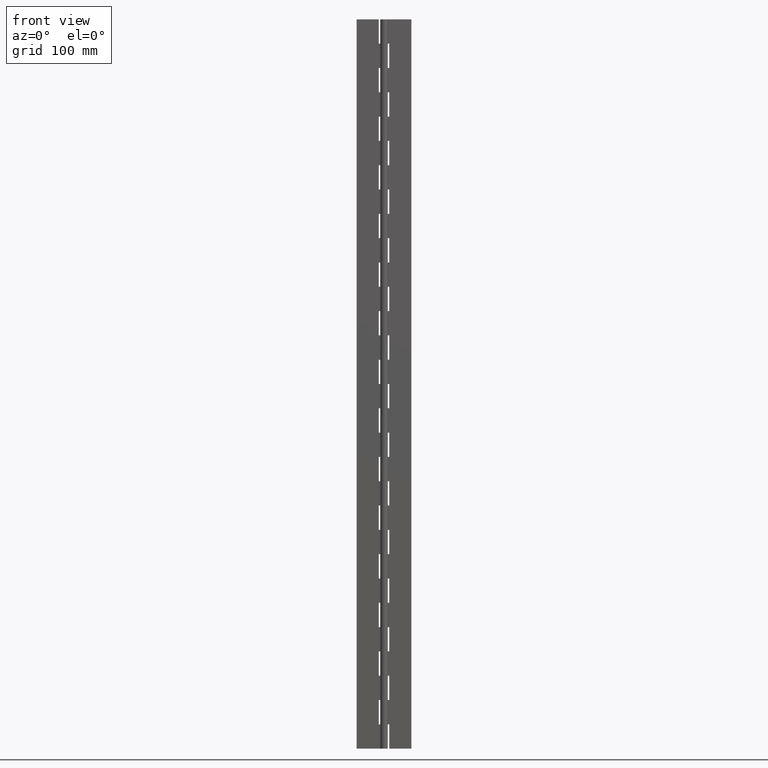
[diagram: clean part render]
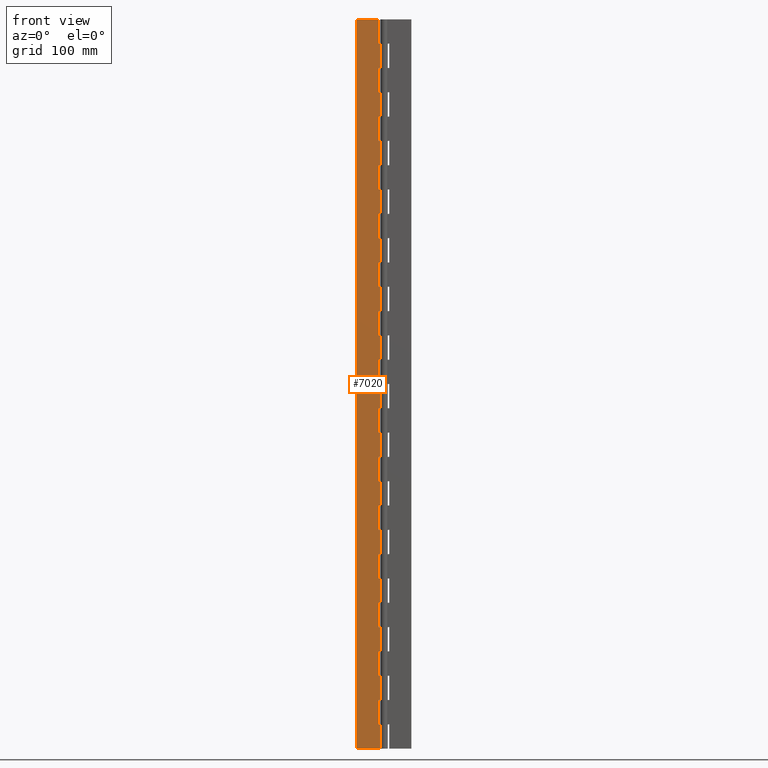
[diagram: same view with one face highlighted and labeled with its STEP entity id]
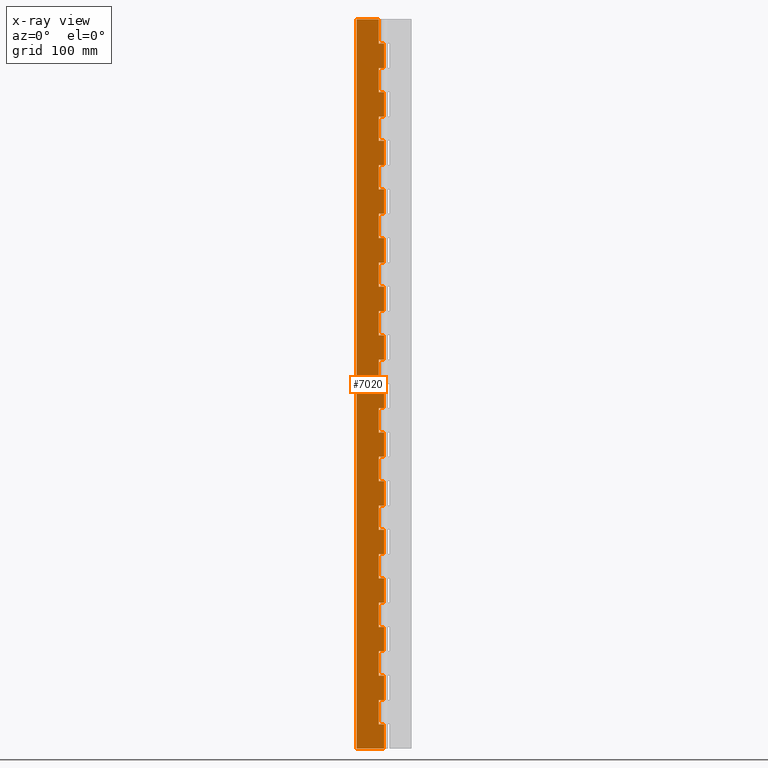
[diagram: x-ray of the same camera — body ghosted, the highlighted face saturated]
A machine part, front view. The second image highlights one B-rep face of the part: STEP entity #7020.
The next image is the same camera in x-ray: the body ghosted, the highlighted face saturated — about 0% of this face is hidden behind the body in this view.
In plain terms, the highlighted face is a freeform B-spline surface patch.
Its self-contained STEP definition (entity closure, byte-faithful):
#4216=CARTESIAN_POINT('',(-4.299994999999895,1.500000000000000,599.999978000000060));
#4217=VERTEX_POINT('',#4216);
#4218=CARTESIAN_POINT('',(-4.299994999999895,1.499999999999946,580.0));
#4219=VERTEX_POINT('',#4218);
#4220=CARTESIAN_POINT('',(-4.299994999999895,1.500000000000000,599.999978000000060));
#4221=CARTESIAN_POINT('',(-4.299994999999895,1.499999999999946,580.0));
#4222=QUASI_UNIFORM_CURVE('',1,(#4220,#4221),.UNSPECIFIED.,.F.,.U.);
#4223=EDGE_CURVE('',#4217,#4219,#4222,.T.);
#4281=CARTESIAN_POINT('',(9.184352E-017,1.500000000000000,580.0));
#4282=VERTEX_POINT('',#4281);
#4283=CARTESIAN_POINT('',(-4.299994999999895,1.499999999999946,580.0));
#4284=CARTESIAN_POINT('',(9.184352E-017,1.500000000000000,580.0));
#4285=QUASI_UNIFORM_CURVE('',1,(#4283,#4284),.UNSPECIFIED.,.F.,.U.);
#4286=EDGE_CURVE('',#4219,#4282,#4285,.T.);
#4352=CARTESIAN_POINT('',(9.184548E-017,1.500000000000000,560.000008000000090));
#4353=VERTEX_POINT('',#4352);
#4373=CARTESIAN_POINT('',(-4.299994999999895,1.499999999999946,560.000008000000090));
#4374=VERTEX_POINT('',#4373);
#4375=CARTESIAN_POINT('',(9.184548E-017,1.500000000000000,560.000008000000090));
#4376=CARTESIAN_POINT('',(-4.299994999999895,1.499999999999946,560.000008000000090));
#4377=QUASI_UNIFORM_CURVE('',1,(#4375,#4376),.UNSPECIFIED.,.F.,.U.);
#4378=EDGE_CURVE('',#4353,#4374,#4377,.T.);
#4400=CARTESIAN_POINT('',(-4.299994999999895,1.499999999999946,540.0));
#4401=VERTEX_POINT('',#4400);
#4402=CARTESIAN_POINT('',(-4.299994999999895,1.499999999999946,560.000008000000090));
#4403=CARTESIAN_POINT('',(-4.299994999999895,1.499999999999946,540.0));
#4404=QUASI_UNIFORM_CURVE('',1,(#4402,#4403),.UNSPECIFIED.,.F.,.U.);
#4405=EDGE_CURVE('',#4374,#4401,#4404,.T.);
#4457=CARTESIAN_POINT('',(9.184352E-017,1.500000000000000,540.0));
#4458=VERTEX_POINT('',#4457);
#4459=CARTESIAN_POINT('',(-4.299994999999895,1.499999999999946,540.0));
#4460=CARTESIAN_POINT('',(9.184352E-017,1.500000000000000,540.0));
#4461=QUASI_UNIFORM_CURVE('',1,(#4459,#4460),.UNSPECIFIED.,.F.,.U.);
#4462=EDGE_CURVE('',#4401,#4458,#4461,.T.);
#4528=CARTESIAN_POINT('',(9.184548E-017,1.500000000000000,520.000007999999980));
#4529=VERTEX_POINT('',#4528);
#4549=CARTESIAN_POINT('',(-4.299994999999895,1.499999999999946,520.000007999999980));
#4550=VERTEX_POINT('',#4549);
#4551=CARTESIAN_POINT('',(9.184548E-017,1.500000000000000,520.000007999999980));
#4552=CARTESIAN_POINT('',(-4.299994999999895,1.499999999999946,520.000007999999980));
#4553=QUASI_UNIFORM_CURVE('',1,(#4551,#4552),.UNSPECIFIED.,.F.,.U.);
#4554=EDGE_CURVE('',#4529,#4550,#4553,.T.);
#4576=CARTESIAN_POINT('',(-4.299994999999895,1.499999999999946,500.0));
#4577=VERTEX_POINT('',#4576);
#4578=CARTESIAN_POINT('',(-4.299994999999895,1.499999999999946,520.000007999999980));
#4579=CARTESIAN_POINT('',(-4.299994999999895,1.499999999999946,500.0));
#4580=QUASI_UNIFORM_CURVE('',1,(#4578,#4579),.UNSPECIFIED.,.F.,.U.);
#4581=EDGE_CURVE('',#4550,#4577,#4580,.T.);
#4633=CARTESIAN_POINT('',(9.184352E-017,1.500000000000000,500.0));
#4634=VERTEX_POINT('',#4633);
#4635=CARTESIAN_POINT('',(-4.299994999999895,1.499999999999946,500.0));
#4636=CARTESIAN_POINT('',(9.184352E-017,1.500000000000000,500.0));
#4637=QUASI_UNIFORM_CURVE('',1,(#4635,#4636),.UNSPECIFIED.,.F.,.U.);
#4638=EDGE_CURVE('',#4577,#4634,#4637,.T.);
#4704=CARTESIAN_POINT('',(9.184548E-017,1.500000000000000,480.000007999999980));
#4705=VERTEX_POINT('',#4704);
#4725=CARTESIAN_POINT('',(-4.299994999999895,1.499999999999946,480.000007999999980));
#4726=VERTEX_POINT('',#4725);
#4727=CARTESIAN_POINT('',(9.184548E-017,1.500000000000000,480.000007999999980));
#4728=CARTESIAN_POINT('',(-4.299994999999895,1.499999999999946,480.000007999999980));
#4729=QUASI_UNIFORM_CURVE('',1,(#4727,#4728),.UNSPECIFIED.,.F.,.U.);
#4730=EDGE_CURVE('',#4705,#4726,#4729,.T.);
#4752=CARTESIAN_POINT('',(-4.299994999999895,1.499999999999946,460.0));
#4753=VERTEX_POINT('',#4752);
#4754=CARTESIAN_POINT('',(-4.299994999999895,1.499999999999946,480.000007999999980));
#4755=CARTESIAN_POINT('',(-4.299994999999895,1.499999999999946,460.0));
#4756=QUASI_UNIFORM_CURVE('',1,(#4754,#4755),.UNSPECIFIED.,.F.,.U.);
#4757=EDGE_CURVE('',#4726,#4753,#4756,.T.);
#4809=CARTESIAN_POINT('',(9.184352E-017,1.500000000000000,460.0));
#4810=VERTEX_POINT('',#4809);
#4811=CARTESIAN_POINT('',(-4.299994999999895,1.499999999999946,460.0));
#4812=CARTESIAN_POINT('',(9.184352E-017,1.500000000000000,460.0));
#4813=QUASI_UNIFORM_CURVE('',1,(#4811,#4812),.UNSPECIFIED.,.F.,.U.);
#4814=EDGE_CURVE('',#4753,#4810,#4813,.T.);
#4880=CARTESIAN_POINT('',(9.184548E-017,1.500000000000000,440.000007999999980));
#4881=VERTEX_POINT('',#4880);
#4901=CARTESIAN_POINT('',(-4.299994999999895,1.499999999999946,440.000007999999980));
#4902=VERTEX_POINT('',#4901);
#4903=CARTESIAN_POINT('',(9.184548E-017,1.500000000000000,440.000007999999980));
#4904=CARTESIAN_POINT('',(-4.299994999999895,1.499999999999946,440.000007999999980));
#4905=QUASI_UNIFORM_CURVE('',1,(#4903,#4904),.UNSPECIFIED.,.F.,.U.);
#4906=EDGE_CURVE('',#4881,#4902,#4905,.T.);
#4928=CARTESIAN_POINT('',(-4.299994999999895,1.499999999999946,420.0));
#4929=VERTEX_POINT('',#4928);
#4930=CARTESIAN_POINT('',(-4.299994999999895,1.499999999999946,440.000007999999980));
#4931=CARTESIAN_POINT('',(-4.299994999999895,1.499999999999946,420.0));
#4932=QUASI_UNIFORM_CURVE('',1,(#4930,#4931),.UNSPECIFIED.,.F.,.U.);
#4933=EDGE_CURVE('',#4902,#4929,#4932,.T.);
#4985=CARTESIAN_POINT('',(9.184352E-017,1.500000000000000,420.0));
#4986=VERTEX_POINT('',#4985);
#4987=CARTESIAN_POINT('',(-4.299994999999895,1.499999999999946,420.0));
#4988=CARTESIAN_POINT('',(9.184352E-017,1.500000000000000,420.0));
#4989=QUASI_UNIFORM_CURVE('',1,(#4987,#4988),.UNSPECIFIED.,.F.,.U.);
#4990=EDGE_CURVE('',#4929,#4986,#4989,.T.);
#5056=CARTESIAN_POINT('',(9.184548E-017,1.500000000000000,400.000007999999980));
#5057=VERTEX_POINT('',#5056);
#5077=CARTESIAN_POINT('',(-4.299994999999895,1.499999999999946,400.000007999999980));
#5078=VERTEX_POINT('',#5077);
#5079=CARTESIAN_POINT('',(9.184548E-017,1.500000000000000,400.000007999999980));
#5080=CARTESIAN_POINT('',(-4.299994999999895,1.499999999999946,400.000007999999980));
#5081=QUASI_UNIFORM_CURVE('',1,(#5079,#5080),.UNSPECIFIED.,.F.,.U.);
#5082=EDGE_CURVE('',#5057,#5078,#5081,.T.);
#5104=CARTESIAN_POINT('',(-4.299994999999895,1.499999999999946,380.0));
#5105=VERTEX_POINT('',#5104);
#5106=CARTESIAN_POINT('',(-4.299994999999895,1.499999999999946,400.000007999999980));
#5107=CARTESIAN_POINT('',(-4.299994999999895,1.499999999999946,380.0));
#5108=QUASI_UNIFORM_CURVE('',1,(#5106,#5107),.UNSPECIFIED.,.F.,.U.);
#5109=EDGE_CURVE('',#5078,#5105,#5108,.T.);
#5161=CARTESIAN_POINT('',(9.184352E-017,1.500000000000000,380.0));
#5162=VERTEX_POINT('',#5161);
#5163=CARTESIAN_POINT('',(-4.299994999999895,1.499999999999946,380.0));
#5164=CARTESIAN_POINT('',(9.184352E-017,1.500000000000000,380.0));
#5165=QUASI_UNIFORM_CURVE('',1,(#5163,#5164),.UNSPECIFIED.,.F.,.U.);
#5166=EDGE_CURVE('',#5105,#5162,#5165,.T.);
#5232=CARTESIAN_POINT('',(9.184548E-017,1.500000000000000,360.000007999999980));
#5233=VERTEX_POINT('',#5232);
#5253=CARTESIAN_POINT('',(-4.299994999999895,1.499999999999946,360.000007999999980));
#5254=VERTEX_POINT('',#5253);
#5255=CARTESIAN_POINT('',(9.184548E-017,1.500000000000000,360.000007999999980));
#5256=CARTESIAN_POINT('',(-4.299994999999895,1.499999999999946,360.000007999999980));
#5257=QUASI_UNIFORM_CURVE('',1,(#5255,#5256),.UNSPECIFIED.,.F.,.U.);
#5258=EDGE_CURVE('',#5233,#5254,#5257,.T.);
#5280=CARTESIAN_POINT('',(-4.299994999999895,1.499999999999946,340.0));
#5281=VERTEX_POINT('',#5280);
#5282=CARTESIAN_POINT('',(-4.299994999999895,1.499999999999946,360.000007999999980));
#5283=CARTESIAN_POINT('',(-4.299994999999895,1.499999999999946,340.0));
#5284=QUASI_UNIFORM_CURVE('',1,(#5282,#5283),.UNSPECIFIED.,.F.,.U.);
#5285=EDGE_CURVE('',#5254,#5281,#5284,.T.);
#5337=CARTESIAN_POINT('',(9.184352E-017,1.500000000000000,340.0));
#5338=VERTEX_POINT('',#5337);
#5339=CARTESIAN_POINT('',(-4.299994999999895,1.499999999999946,340.0));
#5340=CARTESIAN_POINT('',(9.184352E-017,1.500000000000000,340.0));
#5341=QUASI_UNIFORM_CURVE('',1,(#5339,#5340),.UNSPECIFIED.,.F.,.U.);
#5342=EDGE_CURVE('',#5281,#5338,#5341,.T.);
#5408=CARTESIAN_POINT('',(9.184548E-017,1.500000000000000,320.000007999999980));
#5409=VERTEX_POINT('',#5408);
#5429=CARTESIAN_POINT('',(-4.299994999999895,1.499999999999946,320.000007999999980));
#5430=VERTEX_POINT('',#5429);
#5431=CARTESIAN_POINT('',(9.184548E-017,1.500000000000000,320.000007999999980));
#5432=CARTESIAN_POINT('',(-4.299994999999895,1.499999999999946,320.000007999999980));
#5433=QUASI_UNIFORM_CURVE('',1,(#5431,#5432),.UNSPECIFIED.,.F.,.U.);
#5434=EDGE_CURVE('',#5409,#5430,#5433,.T.);
#5456=CARTESIAN_POINT('',(-4.299994999999895,1.499999999999946,300.0));
#5457=VERTEX_POINT('',#5456);
#5458=CARTESIAN_POINT('',(-4.299994999999895,1.499999999999946,320.000007999999980));
#5459=CARTESIAN_POINT('',(-4.299994999999895,1.499999999999946,300.0));
#5460=QUASI_UNIFORM_CURVE('',1,(#5458,#5459),.UNSPECIFIED.,.F.,.U.);
#5461=EDGE_CURVE('',#5430,#5457,#5460,.T.);
#5513=CARTESIAN_POINT('',(9.184352E-017,1.500000000000000,300.0));
#5514=VERTEX_POINT('',#5513);
#5515=CARTESIAN_POINT('',(-4.299994999999895,1.499999999999946,300.0));
#5516=CARTESIAN_POINT('',(9.184352E-017,1.500000000000000,300.0));
#5517=QUASI_UNIFORM_CURVE('',1,(#5515,#5516),.UNSPECIFIED.,.F.,.U.);
#5518=EDGE_CURVE('',#5457,#5514,#5517,.T.);
#5584=CARTESIAN_POINT('',(9.184548E-017,1.500000000000000,280.000007999999980));
#5585=VERTEX_POINT('',#5584);
#5605=CARTESIAN_POINT('',(-4.299994999999895,1.499999999999946,280.000007999999980));
#5606=VERTEX_POINT('',#5605);
#5607=CARTESIAN_POINT('',(9.184548E-017,1.500000000000000,280.000007999999980));
#5608=CARTESIAN_POINT('',(-4.299994999999895,1.499999999999946,280.000007999999980));
#5609=QUASI_UNIFORM_CURVE('',1,(#5607,#5608),.UNSPECIFIED.,.F.,.U.);
#5610=EDGE_CURVE('',#5585,#5606,#5609,.T.);
#5632=CARTESIAN_POINT('',(-4.299994999999895,1.499999999999946,260.0));
#5633=VERTEX_POINT('',#5632);
#5634=CARTESIAN_POINT('',(-4.299994999999895,1.499999999999946,280.000007999999980));
#5635=CARTESIAN_POINT('',(-4.299994999999895,1.499999999999946,260.0));
#5636=QUASI_UNIFORM_CURVE('',1,(#5634,#5635),.UNSPECIFIED.,.F.,.U.);
#5637=EDGE_CURVE('',#5606,#5633,#5636,.T.);
#5689=CARTESIAN_POINT('',(9.184352E-017,1.500000000000000,260.0));
#5690=VERTEX_POINT('',#5689);
#5691=CARTESIAN_POINT('',(-4.299994999999895,1.499999999999946,260.0));
#5692=CARTESIAN_POINT('',(9.184352E-017,1.500000000000000,260.0));
#5693=QUASI_UNIFORM_CURVE('',1,(#5691,#5692),.UNSPECIFIED.,.F.,.U.);
#5694=EDGE_CURVE('',#5633,#5690,#5693,.T.);
#5760=CARTESIAN_POINT('',(9.184548E-017,1.500000000000000,240.000008000000010));
#5761=VERTEX_POINT('',#5760);
#5781=CARTESIAN_POINT('',(-4.299994999999895,1.499999999999946,240.000008000000010));
#5782=VERTEX_POINT('',#5781);
#5783=CARTESIAN_POINT('',(9.184548E-017,1.500000000000000,240.000008000000010));
#5784=CARTESIAN_POINT('',(-4.299994999999895,1.499999999999946,240.000008000000010));
#5785=QUASI_UNIFORM_CURVE('',1,(#5783,#5784),.UNSPECIFIED.,.F.,.U.);
#5786=EDGE_CURVE('',#5761,#5782,#5785,.T.);
#5808=CARTESIAN_POINT('',(-4.299994999999895,1.499999999999946,220.0));
#5809=VERTEX_POINT('',#5808);
#5810=CARTESIAN_POINT('',(-4.299994999999895,1.499999999999946,240.000008000000010));
#5811=CARTESIAN_POINT('',(-4.299994999999895,1.499999999999946,220.0));
#5812=QUASI_UNIFORM_CURVE('',1,(#5810,#5811),.UNSPECIFIED.,.F.,.U.);
#5813=EDGE_CURVE('',#5782,#5809,#5812,.T.);
#5865=CARTESIAN_POINT('',(9.184352E-017,1.500000000000000,220.0));
#5866=VERTEX_POINT('',#5865);
#5867=CARTESIAN_POINT('',(-4.299994999999895,1.499999999999946,220.0));
#5868=CARTESIAN_POINT('',(9.184352E-017,1.500000000000000,220.0));
#5869=QUASI_UNIFORM_CURVE('',1,(#5867,#5868),.UNSPECIFIED.,.F.,.U.);
#5870=EDGE_CURVE('',#5809,#5866,#5869,.T.);
#5936=CARTESIAN_POINT('',(9.184548E-017,1.500000000000000,200.000008000000010));
#5937=VERTEX_POINT('',#5936);
#5957=CARTESIAN_POINT('',(-4.299994999999895,1.499999999999946,200.000008000000010));
#5958=VERTEX_POINT('',#5957);
#5959=CARTESIAN_POINT('',(9.184548E-017,1.500000000000000,200.000008000000010));
#5960=CARTESIAN_POINT('',(-4.299994999999895,1.499999999999946,200.000008000000010));
#5961=QUASI_UNIFORM_CURVE('',1,(#5959,#5960),.UNSPECIFIED.,.F.,.U.);
#5962=EDGE_CURVE('',#5937,#5958,#5961,.T.);
#5984=CARTESIAN_POINT('',(-4.299994999999895,1.499999999999946,180.0));
#5985=VERTEX_POINT('',#5984);
#5986=CARTESIAN_POINT('',(-4.299994999999895,1.499999999999946,200.000008000000010));
#5987=CARTESIAN_POINT('',(-4.299994999999895,1.499999999999946,180.0));
#5988=QUASI_UNIFORM_CURVE('',1,(#5986,#5987),.UNSPECIFIED.,.F.,.U.);
#5989=EDGE_CURVE('',#5958,#5985,#5988,.T.);
#6041=CARTESIAN_POINT('',(9.184352E-017,1.500000000000000,180.0));
#6042=VERTEX_POINT('',#6041);
#6043=CARTESIAN_POINT('',(-4.299994999999895,1.499999999999946,180.0));
#6044=CARTESIAN_POINT('',(9.184352E-017,1.500000000000000,180.0));
#6045=QUASI_UNIFORM_CURVE('',1,(#6043,#6044),.UNSPECIFIED.,.F.,.U.);
#6046=EDGE_CURVE('',#5985,#6042,#6045,.T.);
#6112=CARTESIAN_POINT('',(9.184548E-017,1.500000000000000,160.000008000000010));
#6113=VERTEX_POINT('',#6112);
#6133=CARTESIAN_POINT('',(-4.299994999999895,1.499999999999946,160.000008000000010));
#6134=VERTEX_POINT('',#6133);
#6135=CARTESIAN_POINT('',(9.184548E-017,1.500000000000000,160.000008000000010));
#6136=CARTESIAN_POINT('',(-4.299994999999895,1.499999999999946,160.000008000000010));
#6137=QUASI_UNIFORM_CURVE('',1,(#6135,#6136),.UNSPECIFIED.,.F.,.U.);
#6138=EDGE_CURVE('',#6113,#6134,#6137,.T.);
#6160=CARTESIAN_POINT('',(-4.299994999999895,1.499999999999946,140.0));
#6161=VERTEX_POINT('',#6160);
#6162=CARTESIAN_POINT('',(-4.299994999999895,1.499999999999946,160.000008000000010));
#6163=CARTESIAN_POINT('',(-4.299994999999895,1.499999999999946,140.0));
#6164=QUASI_UNIFORM_CURVE('',1,(#6162,#6163),.UNSPECIFIED.,.F.,.U.);
#6165=EDGE_CURVE('',#6134,#6161,#6164,.T.);
#6217=CARTESIAN_POINT('',(9.184352E-017,1.500000000000000,140.0));
#6218=VERTEX_POINT('',#6217);
#6219=CARTESIAN_POINT('',(-4.299994999999895,1.499999999999946,140.0));
#6220=CARTESIAN_POINT('',(9.184352E-017,1.500000000000000,140.0));
#6221=QUASI_UNIFORM_CURVE('',1,(#6219,#6220),.UNSPECIFIED.,.F.,.U.);
#6222=EDGE_CURVE('',#6161,#6218,#6221,.T.);
#6288=CARTESIAN_POINT('',(9.184548E-017,1.500000000000000,120.000007999999990));
#6289=VERTEX_POINT('',#6288);
#6309=CARTESIAN_POINT('',(-4.299994999999895,1.499999999999946,120.000007999999990));
#6310=VERTEX_POINT('',#6309);
#6311=CARTESIAN_POINT('',(9.184548E-017,1.500000000000000,120.000007999999990));
#6312=CARTESIAN_POINT('',(-4.299994999999895,1.499999999999946,120.000007999999990));
#6313=QUASI_UNIFORM_CURVE('',1,(#6311,#6312),.UNSPECIFIED.,.F.,.U.);
#6314=EDGE_CURVE('',#6289,#6310,#6313,.T.);
#6336=CARTESIAN_POINT('',(-4.299994999999895,1.499999999999946,100.0));
#6337=VERTEX_POINT('',#6336);
#6338=CARTESIAN_POINT('',(-4.299994999999895,1.499999999999946,120.000007999999990));
#6339=CARTESIAN_POINT('',(-4.299994999999895,1.499999999999946,100.0));
#6340=QUASI_UNIFORM_CURVE('',1,(#6338,#6339),.UNSPECIFIED.,.F.,.U.);
#6341=EDGE_CURVE('',#6310,#6337,#6340,.T.);
#6393=CARTESIAN_POINT('',(9.184352E-017,1.500000000000000,100.0));
#6394=VERTEX_POINT('',#6393);
#6395=CARTESIAN_POINT('',(-4.299994999999895,1.499999999999946,100.0));
#6396=CARTESIAN_POINT('',(9.184352E-017,1.500000000000000,100.0));
#6397=QUASI_UNIFORM_CURVE('',1,(#6395,#6396),.UNSPECIFIED.,.F.,.U.);
#6398=EDGE_CURVE('',#6337,#6394,#6397,.T.);
#6464=CARTESIAN_POINT('',(9.184548E-017,1.500000000000000,80.000007999999809));
#6465=VERTEX_POINT('',#6464);
#6485=CARTESIAN_POINT('',(-4.299994999999895,1.499999999999946,80.000007999999895));
#6486=VERTEX_POINT('',#6485);
#6487=CARTESIAN_POINT('',(9.184548E-017,1.500000000000000,80.000007999999809));
#6488=CARTESIAN_POINT('',(-4.299994999999895,1.499999999999946,80.000007999999895));
#6489=QUASI_UNIFORM_CURVE('',1,(#6487,#6488),.UNSPECIFIED.,.F.,.U.);
#6490=EDGE_CURVE('',#6465,#6486,#6489,.T.);
#6512=CARTESIAN_POINT('',(-4.299994999999895,1.499999999999946,60.0));
#6513=VERTEX_POINT('',#6512);
#6514=CARTESIAN_POINT('',(-4.299994999999895,1.499999999999946,80.000007999999895));
#6515=CARTESIAN_POINT('',(-4.299994999999895,1.499999999999946,60.0));
#6516=QUASI_UNIFORM_CURVE('',1,(#6514,#6515),.UNSPECIFIED.,.F.,.U.);
#6517=EDGE_CURVE('',#6486,#6513,#6516,.T.);
#6569=CARTESIAN_POINT('',(9.184352E-017,1.500000000000000,60.0));
#6570=VERTEX_POINT('',#6569);
#6571=CARTESIAN_POINT('',(-4.299994999999895,1.499999999999946,60.0));
#6572=CARTESIAN_POINT('',(9.184352E-017,1.500000000000000,60.0));
#6573=QUASI_UNIFORM_CURVE('',1,(#6571,#6572),.UNSPECIFIED.,.F.,.U.);
#6574=EDGE_CURVE('',#6513,#6570,#6573,.T.);
#6640=CARTESIAN_POINT('',(9.184548E-017,1.500000000000000,40.000007999999902));
#6641=VERTEX_POINT('',#6640);
#6661=CARTESIAN_POINT('',(-4.299994999999895,1.499999999999946,40.000007999999902));
#6662=VERTEX_POINT('',#6661);
#6663=CARTESIAN_POINT('',(9.184548E-017,1.500000000000000,40.000007999999902));
#6664=CARTESIAN_POINT('',(-4.299994999999895,1.499999999999946,40.000007999999902));
#6665=QUASI_UNIFORM_CURVE('',1,(#6663,#6664),.UNSPECIFIED.,.F.,.U.);
#6666=EDGE_CURVE('',#6641,#6662,#6665,.T.);
#6688=CARTESIAN_POINT('',(-4.299994999999895,1.499999999999946,20.0));
#6689=VERTEX_POINT('',#6688);
#6690=CARTESIAN_POINT('',(-4.299994999999895,1.499999999999946,40.000007999999902));
#6691=CARTESIAN_POINT('',(-4.299994999999895,1.499999999999946,20.0));
#6692=QUASI_UNIFORM_CURVE('',1,(#6690,#6691),.UNSPECIFIED.,.F.,.U.);
#6693=EDGE_CURVE('',#6662,#6689,#6692,.T.);
#6745=CARTESIAN_POINT('',(9.184352E-017,1.500000000000000,20.0));
#6746=VERTEX_POINT('',#6745);
#6747=CARTESIAN_POINT('',(-4.299994999999895,1.499999999999946,20.0));
#6748=CARTESIAN_POINT('',(9.184352E-017,1.500000000000000,20.0));
#6749=QUASI_UNIFORM_CURVE('',1,(#6747,#6748),.UNSPECIFIED.,.F.,.U.);
#6750=EDGE_CURVE('',#6689,#6746,#6749,.T.);
#6786=CARTESIAN_POINT('',(-22.500000000000000,1.500000000000000,0.0));
#6787=VERTEX_POINT('',#6786);
#6830=CARTESIAN_POINT('',(9.184548E-017,1.500000000000000,0.0));
#6831=VERTEX_POINT('',#6830);
#6851=CARTESIAN_POINT('',(9.184548E-017,1.500000000000000,0.0));
#6852=CARTESIAN_POINT('',(-22.500000000000000,1.500000000000000,0.0));
#6853=QUASI_UNIFORM_CURVE('',1,(#6851,#6852),.UNSPECIFIED.,.F.,.U.);
#6854=EDGE_CURVE('',#6831,#6787,#6853,.T.);
#6864=CARTESIAN_POINT('',(-22.500000000000000,1.500000000000000,599.999978000000060));
#6865=VERTEX_POINT('',#6864);
#6866=CARTESIAN_POINT('',(-4.299994999999895,1.500000000000000,599.999978000000060));
#6867=CARTESIAN_POINT('',(-22.500000000000000,1.500000000000000,599.999978000000060));
#6868=QUASI_UNIFORM_CURVE('',1,(#6866,#6867),.UNSPECIFIED.,.F.,.U.);
#6869=EDGE_CURVE('',#4217,#6865,#6868,.T.);
#6887=CARTESIAN_POINT('',(-23.623874956390630,1.500000000000000,629.969998267665800));
#6888=CARTESIAN_POINT('',(-23.623874956390630,1.500000000000000,-29.970014903247840));
#6889=CARTESIAN_POINT('',(1.123875559887659,1.500000000000000,629.969998267665800));
#6890=CARTESIAN_POINT('',(1.123875559887659,1.500000000000000,-29.970014903247840));
#6891=B_SPLINE_SURFACE_WITH_KNOTS('',1,1,((#6887,#6889),(#6888,#6890)),.UNSPECIFIED.,.F.,.F.,.U.,(2,2),(2,2),(0.0,659.940013170913630),(0.0,24.747750516278291),.UNSPECIFIED.);
#6892=ORIENTED_EDGE('',*,*,#4286,.F.);
#6893=ORIENTED_EDGE('',*,*,#4223,.F.);
#6894=ORIENTED_EDGE('',*,*,#6869,.T.);
#6895=CARTESIAN_POINT('',(-22.500000000000000,1.500000000000000,599.999978000000060));
#6896=CARTESIAN_POINT('',(-22.500000000000000,1.500000000000000,0.0));
#6897=QUASI_UNIFORM_CURVE('',1,(#6895,#6896),.UNSPECIFIED.,.F.,.U.);
#6898=EDGE_CURVE('',#6865,#6787,#6897,.T.);
#6899=ORIENTED_EDGE('',*,*,#6898,.T.);
#6900=ORIENTED_EDGE('',*,*,#6854,.F.);
#6901=CARTESIAN_POINT('',(9.184352E-017,1.500000000000000,20.0));
#6902=CARTESIAN_POINT('',(9.184548E-017,1.500000000000000,0.0));
#6903=QUASI_UNIFORM_CURVE('',1,(#6901,#6902),.UNSPECIFIED.,.F.,.U.);
#6904=EDGE_CURVE('',#6746,#6831,#6903,.T.);
#6905=ORIENTED_EDGE('',*,*,#6904,.F.);
#6906=ORIENTED_EDGE('',*,*,#6750,.F.);
#6907=ORIENTED_EDGE('',*,*,#6693,.F.);
#6908=ORIENTED_EDGE('',*,*,#6666,.F.);
#6909=CARTESIAN_POINT('',(9.184352E-017,1.500000000000000,60.0));
#6910=CARTESIAN_POINT('',(9.184548E-017,1.500000000000000,40.000007999999902));
#6911=QUASI_UNIFORM_CURVE('',1,(#6909,#6910),.UNSPECIFIED.,.F.,.U.);
#6912=EDGE_CURVE('',#6570,#6641,#6911,.T.);
#6913=ORIENTED_EDGE('',*,*,#6912,.F.);
#6914=ORIENTED_EDGE('',*,*,#6574,.F.);
#6915=ORIENTED_EDGE('',*,*,#6517,.F.);
#6916=ORIENTED_EDGE('',*,*,#6490,.F.);
#6917=CARTESIAN_POINT('',(9.184352E-017,1.500000000000000,100.0));
#6918=CARTESIAN_POINT('',(9.184548E-017,1.500000000000000,80.000007999999809));
#6919=QUASI_UNIFORM_CURVE('',1,(#6917,#6918),.UNSPECIFIED.,.F.,.U.);
#6920=EDGE_CURVE('',#6394,#6465,#6919,.T.);
#6921=ORIENTED_EDGE('',*,*,#6920,.F.);
#6922=ORIENTED_EDGE('',*,*,#6398,.F.);
#6923=ORIENTED_EDGE('',*,*,#6341,.F.);
#6924=ORIENTED_EDGE('',*,*,#6314,.F.);
#6925=CARTESIAN_POINT('',(9.184352E-017,1.500000000000000,140.0));
#6926=CARTESIAN_POINT('',(9.184548E-017,1.500000000000000,120.000007999999990));
#6927=QUASI_UNIFORM_CURVE('',1,(#6925,#6926),.UNSPECIFIED.,.F.,.U.);
#6928=EDGE_CURVE('',#6218,#6289,#6927,.T.);
#6929=ORIENTED_EDGE('',*,*,#6928,.F.);
#6930=ORIENTED_EDGE('',*,*,#6222,.F.);
#6931=ORIENTED_EDGE('',*,*,#6165,.F.);
#6932=ORIENTED_EDGE('',*,*,#6138,.F.);
#6933=CARTESIAN_POINT('',(9.184352E-017,1.500000000000000,180.0));
#6934=CARTESIAN_POINT('',(9.184548E-017,1.500000000000000,160.000008000000010));
#6935=QUASI_UNIFORM_CURVE('',1,(#6933,#6934),.UNSPECIFIED.,.F.,.U.);
#6936=EDGE_CURVE('',#6042,#6113,#6935,.T.);
#6937=ORIENTED_EDGE('',*,*,#6936,.F.);
#6938=ORIENTED_EDGE('',*,*,#6046,.F.);
#6939=ORIENTED_EDGE('',*,*,#5989,.F.);
#6940=ORIENTED_EDGE('',*,*,#5962,.F.);
#6941=CARTESIAN_POINT('',(9.184352E-017,1.500000000000000,220.0));
#6942=CARTESIAN_POINT('',(9.184548E-017,1.500000000000000,200.000008000000010));
#6943=QUASI_UNIFORM_CURVE('',1,(#6941,#6942),.UNSPECIFIED.,.F.,.U.);
#6944=EDGE_CURVE('',#5866,#5937,#6943,.T.);
#6945=ORIENTED_EDGE('',*,*,#6944,.F.);
#6946=ORIENTED_EDGE('',*,*,#5870,.F.);
#6947=ORIENTED_EDGE('',*,*,#5813,.F.);
#6948=ORIENTED_EDGE('',*,*,#5786,.F.);
#6949=CARTESIAN_POINT('',(9.184352E-017,1.500000000000000,260.0));
#6950=CARTESIAN_POINT('',(9.184548E-017,1.500000000000000,240.000008000000010));
#6951=QUASI_UNIFORM_CURVE('',1,(#6949,#6950),.UNSPECIFIED.,.F.,.U.);
#6952=EDGE_CURVE('',#5690,#5761,#6951,.T.);
#6953=ORIENTED_EDGE('',*,*,#6952,.F.);
#6954=ORIENTED_EDGE('',*,*,#5694,.F.);
#6955=ORIENTED_EDGE('',*,*,#5637,.F.);
#6956=ORIENTED_EDGE('',*,*,#5610,.F.);
#6957=CARTESIAN_POINT('',(9.184352E-017,1.500000000000000,300.0));
#6958=CARTESIAN_POINT('',(9.184548E-017,1.500000000000000,280.000007999999980));
#6959=QUASI_UNIFORM_CURVE('',1,(#6957,#6958),.UNSPECIFIED.,.F.,.U.);
#6960=EDGE_CURVE('',#5514,#5585,#6959,.T.);
#6961=ORIENTED_EDGE('',*,*,#6960,.F.);
#6962=ORIENTED_EDGE('',*,*,#5518,.F.);
#6963=ORIENTED_EDGE('',*,*,#5461,.F.);
#6964=ORIENTED_EDGE('',*,*,#5434,.F.);
#6965=CARTESIAN_POINT('',(9.184352E-017,1.500000000000000,340.0));
#6966=CARTESIAN_POINT('',(9.184548E-017,1.500000000000000,320.000007999999980));
#6967=QUASI_UNIFORM_CURVE('',1,(#6965,#6966),.UNSPECIFIED.,.F.,.U.);
#6968=EDGE_CURVE('',#5338,#5409,#6967,.T.);
#6969=ORIENTED_EDGE('',*,*,#6968,.F.);
#6970=ORIENTED_EDGE('',*,*,#5342,.F.);
#6971=ORIENTED_EDGE('',*,*,#5285,.F.);
#6972=ORIENTED_EDGE('',*,*,#5258,.F.);
#6973=CARTESIAN_POINT('',(9.184352E-017,1.500000000000000,380.0));
#6974=CARTESIAN_POINT('',(9.184548E-017,1.500000000000000,360.000007999999980));
#6975=QUASI_UNIFORM_CURVE('',1,(#6973,#6974),.UNSPECIFIED.,.F.,.U.);
#6976=EDGE_CURVE('',#5162,#5233,#6975,.T.);
#6977=ORIENTED_EDGE('',*,*,#6976,.F.);
#6978=ORIENTED_EDGE('',*,*,#5166,.F.);
#6979=ORIENTED_EDGE('',*,*,#5109,.F.);
#6980=ORIENTED_EDGE('',*,*,#5082,.F.);
#6981=CARTESIAN_POINT('',(9.184352E-017,1.500000000000000,420.0));
#6982=CARTESIAN_POINT('',(9.184548E-017,1.500000000000000,400.000007999999980));
#6983=QUASI_UNIFORM_CURVE('',1,(#6981,#6982),.UNSPECIFIED.,.F.,.U.);
#6984=EDGE_CURVE('',#4986,#5057,#6983,.T.);
#6985=ORIENTED_EDGE('',*,*,#6984,.F.);
#6986=ORIENTED_EDGE('',*,*,#4990,.F.);
#6987=ORIENTED_EDGE('',*,*,#4933,.F.);
#6988=ORIENTED_EDGE('',*,*,#4906,.F.);
#6989=CARTESIAN_POINT('',(9.184352E-017,1.500000000000000,460.0));
#6990=CARTESIAN_POINT('',(9.184548E-017,1.500000000000000,440.000007999999980));
#6991=QUASI_UNIFORM_CURVE('',1,(#6989,#6990),.UNSPECIFIED.,.F.,.U.);
#6992=EDGE_CURVE('',#4810,#4881,#6991,.T.);
#6993=ORIENTED_EDGE('',*,*,#6992,.F.);
#6994=ORIENTED_EDGE('',*,*,#4814,.F.);
#6995=ORIENTED_EDGE('',*,*,#4757,.F.);
#6996=ORIENTED_EDGE('',*,*,#4730,.F.);
#6997=CARTESIAN_POINT('',(9.184352E-017,1.500000000000000,500.0));
#6998=CARTESIAN_POINT('',(9.184548E-017,1.500000000000000,480.000007999999980));
#6999=QUASI_UNIFORM_CURVE('',1,(#6997,#6998),.UNSPECIFIED.,.F.,.U.);
#7000=EDGE_CURVE('',#4634,#4705,#6999,.T.);
#7001=ORIENTED_EDGE('',*,*,#7000,.F.);
#7002=ORIENTED_EDGE('',*,*,#4638,.F.);
#7003=ORIENTED_EDGE('',*,*,#4581,.F.);
#7004=ORIENTED_EDGE('',*,*,#4554,.F.);
#7005=CARTESIAN_POINT('',(9.184352E-017,1.500000000000000,540.0));
#7006=CARTESIAN_POINT('',(9.184548E-017,1.500000000000000,520.000007999999980));
#7007=QUASI_UNIFORM_CURVE('',1,(#7005,#7006),.UNSPECIFIED.,.F.,.U.);
#7008=EDGE_CURVE('',#4458,#4529,#7007,.T.);
#7009=ORIENTED_EDGE('',*,*,#7008,.F.);
#7010=ORIENTED_EDGE('',*,*,#4462,.F.);
#7011=ORIENTED_EDGE('',*,*,#4405,.F.);
#7012=ORIENTED_EDGE('',*,*,#4378,.F.);
#7013=CARTESIAN_POINT('',(9.184352E-017,1.500000000000000,580.0));
#7014=CARTESIAN_POINT('',(9.184548E-017,1.500000000000000,560.000008000000090));
#7015=QUASI_UNIFORM_CURVE('',1,(#7013,#7014),.UNSPECIFIED.,.F.,.U.);
#7016=EDGE_CURVE('',#4282,#4353,#7015,.T.);
#7017=ORIENTED_EDGE('',*,*,#7016,.F.);
#7018=EDGE_LOOP('',(#6892,#6893,#6894,#6899,#6900,#6905,#6906,#6907,#6908,#6913,#6914,#6915,#6916,#6921,#6922,#6923,#6924,#6929,#6930,#6931,#6932,#6937,#6938,#6939,#6940,#6945,#6946,#6947,#6948,#6953,#6954,#6955,#6956,#6961,#6962,#6963,#6964,#6969,#6970,#6971,#6972,#6977,#6978,#6979,#6980,#6985,#6986,#6987,#6988,#6993,#6994,#6995,#6996,#7001,#7002,#7003,#7004,#7009,#7010,#7011,#7012,#7017));
#7019=FACE_OUTER_BOUND('',#7018,.T.);
#7020=ADVANCED_FACE('',(#7019),#6891,.T.);